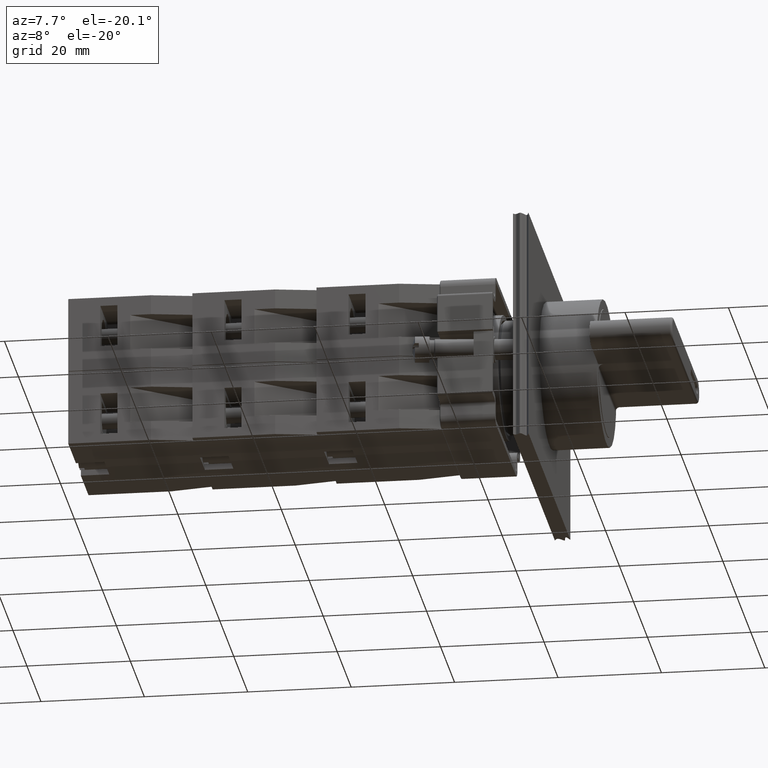
[diagram: clean part render]
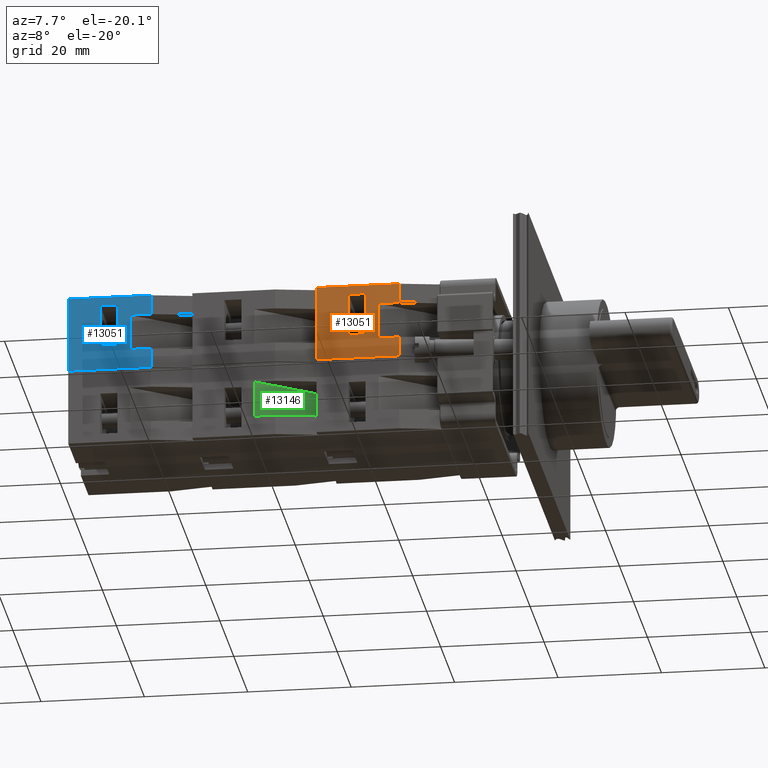
[diagram: same view with three faces highlighted in distinct colors, each labeled with its STEP entity id]
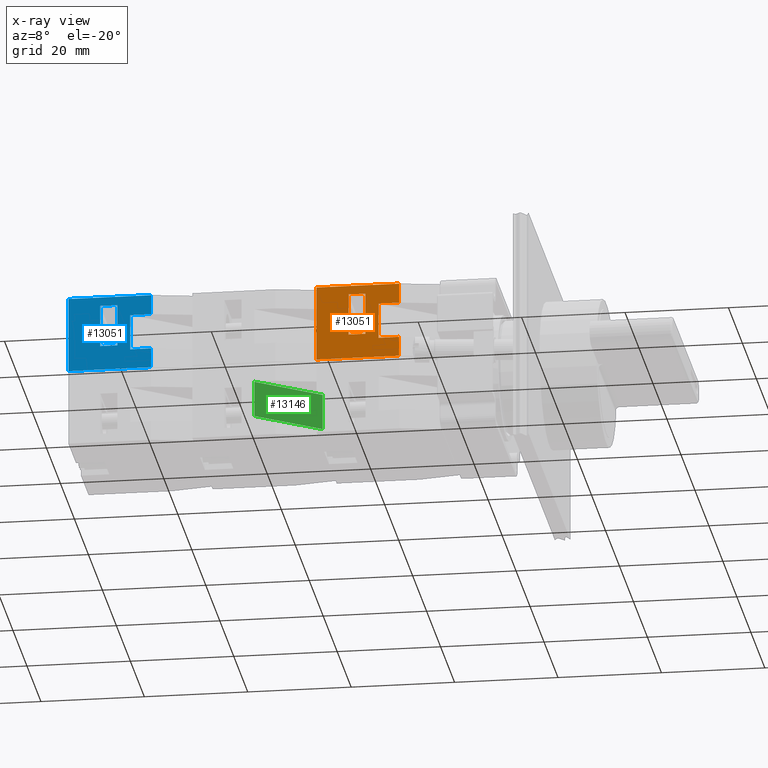
[diagram: x-ray of the same camera — body ghosted, the three highlighted faces saturated]
A machine part, auxiliary view with three faces highlighted in distinct colors.
The next image is the same camera in x-ray (body ghosted, the three faces saturated) — at least one of them is partly hidden behind the body in this view.
Their STEP definitions:

[orange] entity #13051 — the highlighted planar face has unit normal (0, -1, 0).
#12872=CARTESIAN_POINT('',(-44.936741828918457,7.797073323279618,10.850000000000000));
#12873=VERTEX_POINT('',#12872);
#12882=CARTESIAN_POINT('',(-44.936741828918457,11.797073323279610,10.850000000000000));
#12883=VERTEX_POINT('',#12882);
#12884=CARTESIAN_POINT('',(-44.936741828918457,11.797073323279610,10.850000000000000));
#12885=DIRECTION('',(0.0,-1.0,0.0));
#12886=VECTOR('',#12885,3.999999999999992);
#12887=LINE('',#12884,#12886);
#12888=EDGE_CURVE('',#12883,#12873,#12887,.T.);
#12912=CARTESIAN_POINT('',(-44.936741828918457,11.797073323279610,3.850000000000001));
#12913=VERTEX_POINT('',#12912);
#12929=CARTESIAN_POINT('',(-44.936741828918457,11.797073323279610,3.850000000000001));
#12930=DIRECTION('',(0.0,0.0,1.0));
#12931=VECTOR('',#12930,6.999999999999999);
#12932=LINE('',#12929,#12931);
#12933=EDGE_CURVE('',#12913,#12883,#12932,.T.);
#12945=CARTESIAN_POINT('',(-44.936741828918457,7.797073323279618,3.850000000000000));
#12946=VERTEX_POINT('',#12945);
#12960=CARTESIAN_POINT('',(-44.936741828918457,7.797073323279618,3.850000000000000));
#12961=DIRECTION('',(0.0,1.0,0.0));
#12962=VECTOR('',#12961,3.999999999999992);
#12963=LINE('',#12960,#12962);
#12964=EDGE_CURVE('',#12946,#12913,#12963,.T.);
#12969=CARTESIAN_POINT('',(-44.936741828918457,7.797073323279626,0.0));
#12970=DIRECTION('',(-1.0,0.0,0.0));
#12971=DIRECTION('',(0.0,0.0,1.0));
#12972=AXIS2_PLACEMENT_3D('',#12969,#12970,#12971);
#12973=PLANE('',#12972);
#12974=ORIENTED_EDGE('',*,*,#12964,.T.);
#12975=ORIENTED_EDGE('',*,*,#12933,.T.);
#12976=ORIENTED_EDGE('',*,*,#12888,.T.);
#12977=CARTESIAN_POINT('',(-44.936741828918457,7.797073323279626,14.699999999999999));
#12978=VERTEX_POINT('',#12977);
#12979=CARTESIAN_POINT('',(-44.936741828918457,7.797073323279618,10.850000000000000));
#12980=DIRECTION('',(0.0,0.0,1.0));
#12981=VECTOR('',#12980,3.850000000000000);
#12982=LINE('',#12979,#12981);
#12983=EDGE_CURVE('',#12873,#12978,#12982,.T.);
#12984=ORIENTED_EDGE('',*,*,#12983,.T.);
#12985=CARTESIAN_POINT('',(-44.936741828918471,23.797073323279623,14.699999999999999));
#12986=VERTEX_POINT('',#12985);
#12987=CARTESIAN_POINT('',(-44.936741828918457,7.797073323279626,14.699999999999999));
#12988=DIRECTION('',(0.0,1.0,0.0));
#12989=VECTOR('',#12988,15.999999999999996);
#12990=LINE('',#12987,#12989);
#12991=EDGE_CURVE('',#12978,#12986,#12990,.T.);
#12992=ORIENTED_EDGE('',*,*,#12991,.T.);
#12993=CARTESIAN_POINT('',(-44.936741828918471,23.797073323279623,0.0));
#12994=VERTEX_POINT('',#12993);
#12995=CARTESIAN_POINT('',(-44.936741828918471,23.797073323279623,0.0));
#12996=DIRECTION('',(0.0,0.0,1.0));
#12997=VECTOR('',#12996,14.699999999999999);
#12998=LINE('',#12995,#12997);
#12999=EDGE_CURVE('',#12994,#12986,#12998,.T.);
#13000=ORIENTED_EDGE('',*,*,#12999,.F.);
#13001=CARTESIAN_POINT('',(-44.936741828918457,7.797073323279626,0.0));
#13002=VERTEX_POINT('',#13001);
#13003=CARTESIAN_POINT('',(-44.936741828918457,7.797073323279626,0.0));
#13004=DIRECTION('',(0.0,1.0,0.0));
#13005=VECTOR('',#13004,15.999999999999996);
#13006=LINE('',#13003,#13005);
#13007=EDGE_CURVE('',#13002,#12994,#13006,.T.);
#13008=ORIENTED_EDGE('',*,*,#13007,.F.);
#13009=CARTESIAN_POINT('',(-44.936741828918457,7.797073323279626,0.0));
#13010=DIRECTION('',(0.0,0.0,1.0));
#13011=VECTOR('',#13010,3.850000000000000);
#13012=LINE('',#13009,#13011);
#13013=EDGE_CURVE('',#13002,#12946,#13012,.T.);
#13014=ORIENTED_EDGE('',*,*,#13013,.T.);
#13015=EDGE_LOOP('',(#12974,#12975,#12976,#12984,#12992,#13000,#13008,#13014));
#13016=FACE_OUTER_BOUND('',#13015,.T.);
#13017=CARTESIAN_POINT('',(-44.936741828918457,14.297073323279621,4.800000000000002));
#13018=VERTEX_POINT('',#13017);
#13019=CARTESIAN_POINT('',(-44.936741828918471,17.597073323279623,4.800000000000001));
#13020=VERTEX_POINT('',#13019);
#13021=CARTESIAN_POINT('',(-44.936741828918457,14.297073323279621,4.800000000000002));
#13022=DIRECTION('',(0.0,1.0,0.0));
#13023=VECTOR('',#13022,3.300000000000003);
#13024=LINE('',#13021,#13023);
#13025=EDGE_CURVE('',#13018,#13020,#13024,.T.);
#13026=ORIENTED_EDGE('',*,*,#13025,.T.);
#13027=CARTESIAN_POINT('',(-44.936741828918471,17.597073323279623,13.0));
#13028=VERTEX_POINT('',#13027);
#13029=CARTESIAN_POINT('',(-44.936741828918471,17.597073323279623,4.800000000000001));
#13030=DIRECTION('',(0.0,0.0,1.0));
#13031=VECTOR('',#13030,8.199999999999999);
#13032=LINE('',#13029,#13031);
#13033=EDGE_CURVE('',#13020,#13028,#13032,.T.);
#13034=ORIENTED_EDGE('',*,*,#13033,.T.);
#13035=CARTESIAN_POINT('',(-44.936741828918457,14.297073323279623,13.0));
#13036=VERTEX_POINT('',#13035);
#13037=CARTESIAN_POINT('',(-44.936741828918471,17.597073323279623,13.0));
#13038=DIRECTION('',(0.0,-1.0,0.0));
#13039=VECTOR('',#13038,3.300000000000001);
#13040=LINE('',#13037,#13039);
#13041=EDGE_CURVE('',#13028,#13036,#13040,.T.);
#13042=ORIENTED_EDGE('',*,*,#13041,.T.);
#13043=CARTESIAN_POINT('',(-44.936741828918457,14.297073323279623,13.0));
#13044=DIRECTION('',(0.0,0.0,-1.0));
#13045=VECTOR('',#13044,8.199999999999999);
#13046=LINE('',#13043,#13045);
#13047=EDGE_CURVE('',#13036,#13018,#13046,.T.);
#13048=ORIENTED_EDGE('',*,*,#13047,.T.);
#13049=EDGE_LOOP('',(#13026,#13034,#13042,#13048));
#13050=FACE_BOUND('',#13049,.T.);
#13051=ADVANCED_FACE('',(#13016,#13050),#12973,.T.);

[blue] entity #13051 — the highlighted planar face has unit normal (0, -1, -0).
#12872=CARTESIAN_POINT('',(-44.936741828918457,7.797073323279618,10.850000000000000));
#12873=VERTEX_POINT('',#12872);
#12882=CARTESIAN_POINT('',(-44.936741828918457,11.797073323279610,10.850000000000000));
#12883=VERTEX_POINT('',#12882);
#12884=CARTESIAN_POINT('',(-44.936741828918457,11.797073323279610,10.850000000000000));
#12885=DIRECTION('',(0.0,-1.0,0.0));
#12886=VECTOR('',#12885,3.999999999999992);
#12887=LINE('',#12884,#12886);
#12888=EDGE_CURVE('',#12883,#12873,#12887,.T.);
#12912=CARTESIAN_POINT('',(-44.936741828918457,11.797073323279610,3.850000000000001));
#12913=VERTEX_POINT('',#12912);
#12929=CARTESIAN_POINT('',(-44.936741828918457,11.797073323279610,3.850000000000001));
#12930=DIRECTION('',(0.0,0.0,1.0));
#12931=VECTOR('',#12930,6.999999999999999);
#12932=LINE('',#12929,#12931);
#12933=EDGE_CURVE('',#12913,#12883,#12932,.T.);
#12945=CARTESIAN_POINT('',(-44.936741828918457,7.797073323279618,3.850000000000000));
#12946=VERTEX_POINT('',#12945);
#12960=CARTESIAN_POINT('',(-44.936741828918457,7.797073323279618,3.850000000000000));
#12961=DIRECTION('',(0.0,1.0,0.0));
#12962=VECTOR('',#12961,3.999999999999992);
#12963=LINE('',#12960,#12962);
#12964=EDGE_CURVE('',#12946,#12913,#12963,.T.);
#12969=CARTESIAN_POINT('',(-44.936741828918457,7.797073323279626,0.0));
#12970=DIRECTION('',(-1.0,0.0,0.0));
#12971=DIRECTION('',(0.0,0.0,1.0));
#12972=AXIS2_PLACEMENT_3D('',#12969,#12970,#12971);
#12973=PLANE('',#12972);
#12974=ORIENTED_EDGE('',*,*,#12964,.T.);
#12975=ORIENTED_EDGE('',*,*,#12933,.T.);
#12976=ORIENTED_EDGE('',*,*,#12888,.T.);
#12977=CARTESIAN_POINT('',(-44.936741828918457,7.797073323279626,14.699999999999999));
#12978=VERTEX_POINT('',#12977);
#12979=CARTESIAN_POINT('',(-44.936741828918457,7.797073323279618,10.850000000000000));
#12980=DIRECTION('',(0.0,0.0,1.0));
#12981=VECTOR('',#12980,3.850000000000000);
#12982=LINE('',#12979,#12981);
#12983=EDGE_CURVE('',#12873,#12978,#12982,.T.);
#12984=ORIENTED_EDGE('',*,*,#12983,.T.);
#12985=CARTESIAN_POINT('',(-44.936741828918471,23.797073323279623,14.699999999999999));
#12986=VERTEX_POINT('',#12985);
#12987=CARTESIAN_POINT('',(-44.936741828918457,7.797073323279626,14.699999999999999));
#12988=DIRECTION('',(0.0,1.0,0.0));
#12989=VECTOR('',#12988,15.999999999999996);
#12990=LINE('',#12987,#12989);
#12991=EDGE_CURVE('',#12978,#12986,#12990,.T.);
#12992=ORIENTED_EDGE('',*,*,#12991,.T.);
#12993=CARTESIAN_POINT('',(-44.936741828918471,23.797073323279623,0.0));
#12994=VERTEX_POINT('',#12993);
#12995=CARTESIAN_POINT('',(-44.936741828918471,23.797073323279623,0.0));
#12996=DIRECTION('',(0.0,0.0,1.0));
#12997=VECTOR('',#12996,14.699999999999999);
#12998=LINE('',#12995,#12997);
#12999=EDGE_CURVE('',#12994,#12986,#12998,.T.);
#13000=ORIENTED_EDGE('',*,*,#12999,.F.);
#13001=CARTESIAN_POINT('',(-44.936741828918457,7.797073323279626,0.0));
#13002=VERTEX_POINT('',#13001);
#13003=CARTESIAN_POINT('',(-44.936741828918457,7.797073323279626,0.0));
#13004=DIRECTION('',(0.0,1.0,0.0));
#13005=VECTOR('',#13004,15.999999999999996);
#13006=LINE('',#13003,#13005);
#13007=EDGE_CURVE('',#13002,#12994,#13006,.T.);
#13008=ORIENTED_EDGE('',*,*,#13007,.F.);
#13009=CARTESIAN_POINT('',(-44.936741828918457,7.797073323279626,0.0));
#13010=DIRECTION('',(0.0,0.0,1.0));
#13011=VECTOR('',#13010,3.850000000000000);
#13012=LINE('',#13009,#13011);
#13013=EDGE_CURVE('',#13002,#12946,#13012,.T.);
#13014=ORIENTED_EDGE('',*,*,#13013,.T.);
#13015=EDGE_LOOP('',(#12974,#12975,#12976,#12984,#12992,#13000,#13008,#13014));
#13016=FACE_OUTER_BOUND('',#13015,.T.);
#13017=CARTESIAN_POINT('',(-44.936741828918457,14.297073323279621,4.800000000000002));
#13018=VERTEX_POINT('',#13017);
#13019=CARTESIAN_POINT('',(-44.936741828918471,17.597073323279623,4.800000000000001));
#13020=VERTEX_POINT('',#13019);
#13021=CARTESIAN_POINT('',(-44.936741828918457,14.297073323279621,4.800000000000002));
#13022=DIRECTION('',(0.0,1.0,0.0));
#13023=VECTOR('',#13022,3.300000000000003);
#13024=LINE('',#13021,#13023);
#13025=EDGE_CURVE('',#13018,#13020,#13024,.T.);
#13026=ORIENTED_EDGE('',*,*,#13025,.T.);
#13027=CARTESIAN_POINT('',(-44.936741828918471,17.597073323279623,13.0));
#13028=VERTEX_POINT('',#13027);
#13029=CARTESIAN_POINT('',(-44.936741828918471,17.597073323279623,4.800000000000001));
#13030=DIRECTION('',(0.0,0.0,1.0));
#13031=VECTOR('',#13030,8.199999999999999);
#13032=LINE('',#13029,#13031);
#13033=EDGE_CURVE('',#13020,#13028,#13032,.T.);
#13034=ORIENTED_EDGE('',*,*,#13033,.T.);
#13035=CARTESIAN_POINT('',(-44.936741828918457,14.297073323279623,13.0));
#13036=VERTEX_POINT('',#13035);
#13037=CARTESIAN_POINT('',(-44.936741828918471,17.597073323279623,13.0));
#13038=DIRECTION('',(0.0,-1.0,0.0));
#13039=VECTOR('',#13038,3.300000000000001);
#13040=LINE('',#13037,#13039);
#13041=EDGE_CURVE('',#13028,#13036,#13040,.T.);
#13042=ORIENTED_EDGE('',*,*,#13041,.T.);
#13043=CARTESIAN_POINT('',(-44.936741828918457,14.297073323279623,13.0));
#13044=DIRECTION('',(0.0,0.0,-1.0));
#13045=VECTOR('',#13044,8.199999999999999);
#13046=LINE('',#13043,#13045);
#13047=EDGE_CURVE('',#13036,#13018,#13046,.T.);
#13048=ORIENTED_EDGE('',*,*,#13047,.T.);
#13049=EDGE_LOOP('',(#13026,#13034,#13042,#13048));
#13050=FACE_BOUND('',#13049,.T.);
#13051=ADVANCED_FACE('',(#13016,#13050),#12973,.T.);

[green] entity #13146 — the highlighted planar face has unit normal (-0.6, 0.8, 0).
#13091=CARTESIAN_POINT('',(-24.936741828918464,-0.202926676720378,10.850000000000000));
#13092=VERTEX_POINT('',#13091);
#13099=CARTESIAN_POINT('',(-15.936741828918466,11.797073323279626,10.850000000000000));
#13100=VERTEX_POINT('',#13099);
#13101=CARTESIAN_POINT('',(-24.936741828918464,-0.202926676720378,10.850000000000000));
#13102=DIRECTION('',(0.600000000000000,0.800000000000000,0.0));
#13103=VECTOR('',#13102,15.000000000000002);
#13104=LINE('',#13101,#13103);
#13105=EDGE_CURVE('',#13092,#13100,#13104,.T.);
#13116=CARTESIAN_POINT('',(-15.936741828918466,11.797073323279626,7.350000000000000));
#13117=DIRECTION('',(-0.800000000000000,0.600000000000000,0.0));
#13118=DIRECTION('',(0.0,0.0,1.0));
#13119=AXIS2_PLACEMENT_3D('',#13116,#13117,#13118);
#13120=PLANE('',#13119);
#13121=CARTESIAN_POINT('',(-15.936741828918466,11.797073323279626,3.850000000000001));
#13122=VERTEX_POINT('',#13121);
#13123=CARTESIAN_POINT('',(-24.936741828918464,-0.202926676720378,3.850000000000001));
#13124=VERTEX_POINT('',#13123);
#13125=CARTESIAN_POINT('',(-15.936741828918466,11.797073323279626,3.850000000000001));
#13126=DIRECTION('',(-0.600000000000000,-0.800000000000000,0.0));
#13127=VECTOR('',#13126,15.000000000000002);
#13128=LINE('',#13125,#13127);
#13129=EDGE_CURVE('',#13122,#13124,#13128,.T.);
#13130=ORIENTED_EDGE('',*,*,#13129,.F.);
#13131=CARTESIAN_POINT('',(-15.936741828918466,11.797073323279626,10.850000000000000));
#13132=DIRECTION('',(0.0,0.0,-1.0));
#13133=VECTOR('',#13132,6.999999999999999);
#13134=LINE('',#13131,#13133);
#13135=EDGE_CURVE('',#13100,#13122,#13134,.T.);
#13136=ORIENTED_EDGE('',*,*,#13135,.F.);
#13137=ORIENTED_EDGE('',*,*,#13105,.F.);
#13138=CARTESIAN_POINT('',(-24.936741828918464,-0.202926676720378,3.850000000000001));
#13139=DIRECTION('',(0.0,0.0,1.0));
#13140=VECTOR('',#13139,6.999999999999999);
#13141=LINE('',#13138,#13140);
#13142=EDGE_CURVE('',#13124,#13092,#13141,.T.);
#13143=ORIENTED_EDGE('',*,*,#13142,.F.);
#13144=EDGE_LOOP('',(#13130,#13136,#13137,#13143));
#13145=FACE_OUTER_BOUND('',#13144,.T.);
#13146=ADVANCED_FACE('',(#13145),#13120,.F.);